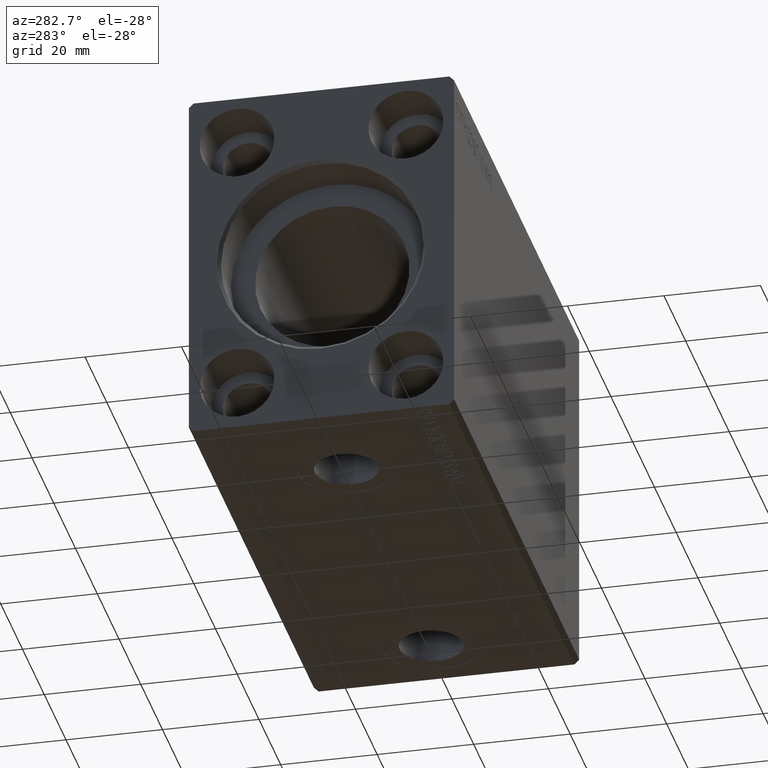
[diagram: clean part render]
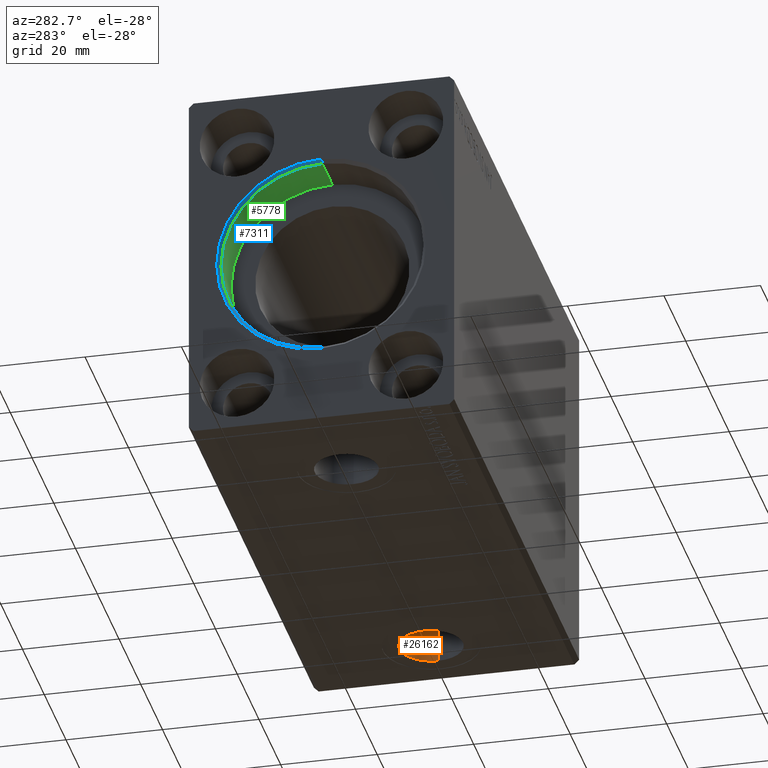
[diagram: same view with three faces highlighted in distinct colors, each labeled with its STEP entity id]
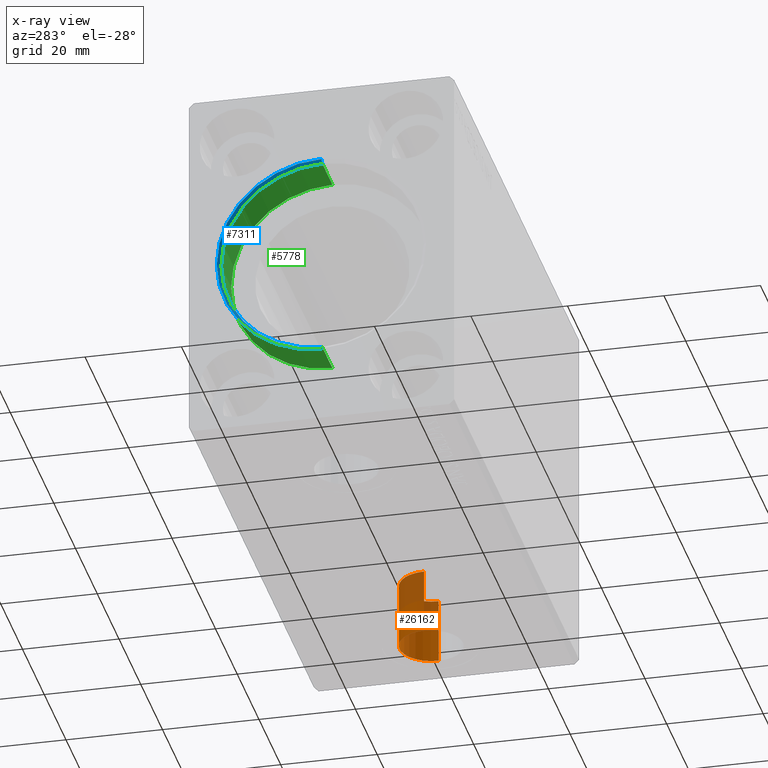
[diagram: x-ray of the same camera — body ghosted, the three highlighted faces saturated]
A machine part, auxiliary view with three faces highlighted in distinct colors.
The next image is the same camera in x-ray (body ghosted, the three faces saturated) — at least one of them is partly hidden behind the body in this view.
Their STEP definitions:

[orange] entity #26162 — the highlighted cylindrical surface (edge-blend (fillet) strip) has radius 6.58 mm, axis along (-0, -0, -1).
#1473 = AXIS2_PLACEMENT_3D ( 'NONE', #39328, #26182, #3771 ) ;
#1610 = CARTESIAN_POINT ( 'NONE',  ( 94.42000000000000171, -1.424819663353346309E-14, -23.79999999999998650 ) ) ;
#2029 = DIRECTION ( 'NONE',  ( -1.000000000000000000, 0.000000000000000000, 0.000000000000000000 ) ) ;
#2597 = CARTESIAN_POINT ( 'NONE',  ( 107.5800000000000125, -1.344237903969450405E-14, -23.79999999999998650 ) ) ;
#3771 = DIRECTION ( 'NONE',  ( -1.000000000000000000, 0.000000000000000000, 0.000000000000000000 ) ) ;
#5127 = DIRECTION ( 'NONE',  ( 0.000000000000000000, 0.000000000000000000, -1.000000000000000000 ) ) ;
#5264 = CYLINDRICAL_SURFACE ( 'NONE', #19897, 6.580000000000002736 ) ;
#5452 = CIRCLE ( 'NONE', #16461, 6.580000000000002736 ) ;
#8056 = ORIENTED_EDGE ( 'NONE', *, *, #38786, .T. ) ;
#8504 = FACE_OUTER_BOUND ( 'NONE', #40444, .T. ) ;
#8712 = DIRECTION ( 'NONE',  ( -0.000000000000000000, -0.000000000000000000, -1.000000000000000000 ) ) ;
#8765 = LINE ( 'NONE', #29006, #27138 ) ;
#9767 = VERTEX_POINT ( 'NONE', #40233 ) ;
#9862 = CARTESIAN_POINT ( 'NONE',  ( 94.42000000000000171, -1.424819663353346309E-14, -37.39999999999999147 ) ) ;
#12186 = EDGE_CURVE ( 'NONE', #39891, #9767, #8765, .T. ) ;
#12423 = DIRECTION ( 'NONE',  ( -0.000000000000000000, -0.000000000000000000, -1.000000000000000000 ) ) ;
#13267 = ORIENTED_EDGE ( 'NONE', *, *, #26138, .T. ) ;
#16461 = AXIS2_PLACEMENT_3D ( 'NONE', #37673, #5127, #21942 ) ;
#17989 = LINE ( 'NONE', #1610, #21951 ) ;
#19231 = CARTESIAN_POINT ( 'NONE',  ( 94.42000000000000171, -1.424819663353346309E-14, -23.79999999999998650 ) ) ;
#19897 = AXIS2_PLACEMENT_3D ( 'NONE', #31754, #8712, #2029 ) ;
#21942 = DIRECTION ( 'NONE',  ( -1.000000000000000000, 0.000000000000000000, 0.000000000000000000 ) ) ;
#21951 = VECTOR ( 'NONE', #31967, 1000.000000000000000 ) ;
#26138 = EDGE_CURVE ( 'NONE', #36027, #30730, #17989, .T. ) ;
#26162 = ADVANCED_FACE ( 'NONE', ( #8504 ), #5264, .F. ) ;
#26182 = DIRECTION ( 'NONE',  ( 0.000000000000000000, 0.000000000000000000, -1.000000000000000000 ) ) ;
#27138 = VECTOR ( 'NONE', #12423, 1000.000000000000000 ) ;
#27990 = EDGE_CURVE ( 'NONE', #36027, #39891, #5452, .T. ) ;
#29006 = CARTESIAN_POINT ( 'NONE',  ( 107.5800000000000125, -1.344237903969450405E-14, -23.79999999999998650 ) ) ;
#29990 = ORIENTED_EDGE ( 'NONE', *, *, #27990, .F. ) ;
#30390 = CIRCLE ( 'NONE', #1473, 6.580000000000002736 ) ;
#30730 = VERTEX_POINT ( 'NONE', #9862 ) ;
#31754 = CARTESIAN_POINT ( 'NONE',  ( 101.0000000000000000, -1.424819663353346309E-14, -23.79999999999998650 ) ) ;
#31967 = DIRECTION ( 'NONE',  ( -0.000000000000000000, -0.000000000000000000, -1.000000000000000000 ) ) ;
#36027 = VERTEX_POINT ( 'NONE', #19231 ) ;
#37673 = CARTESIAN_POINT ( 'NONE',  ( 101.0000000000000000, -1.424819663353346309E-14, -23.79999999999998650 ) ) ;
#38786 = EDGE_CURVE ( 'NONE', #30730, #9767, #30390, .T. ) ;
#39328 = CARTESIAN_POINT ( 'NONE',  ( 101.0000000000000000, -1.424819663353346309E-14, -37.39999999999999147 ) ) ;
#39891 = VERTEX_POINT ( 'NONE', #2597 ) ;
#40233 = CARTESIAN_POINT ( 'NONE',  ( 107.5800000000000125, -1.344237903969450405E-14, -37.39999999999999147 ) ) ;
#40444 = EDGE_LOOP ( 'NONE', ( #42627, #29990, #13267, #8056 ) ) ;
#42627 = ORIENTED_EDGE ( 'NONE', *, *, #12186, .F. ) ;

[blue] entity #7311 — the highlighted conical surface has half-angle 45 deg.
#2004 = VECTOR ( 'NONE', #33314, 1000.000000000000000 ) ;
#3368 = CARTESIAN_POINT ( 'NONE',  ( 0.7000000000000443645, 0.000000000000000000, 21.00000000000000000 ) ) ;
#4170 = VERTEX_POINT ( 'NONE', #5033 ) ;
#4303 = CARTESIAN_POINT ( 'NONE',  ( 0.7000000000000443645, 2.571758278209441661E-15, -21.00000000000000000 ) ) ;
#5033 = CARTESIAN_POINT ( 'NONE',  ( 0.000000000000000000, 2.657483554149761471E-15, -21.70000000000003837 ) ) ;
#5555 = DIRECTION ( 'NONE',  ( -0.7071067811865511255, 8.659560562354889717E-17, -0.7071067811865440200 ) ) ;
#5933 = DIRECTION ( 'NONE',  ( -1.000000000000000000, 0.000000000000000000, 0.000000000000000000 ) ) ;
#6122 = AXIS2_PLACEMENT_3D ( 'NONE', #32130, #42476, #12964 ) ;
#7311 = ADVANCED_FACE ( 'NONE', ( #32421 ), #20787, .F. ) ;
#9566 = EDGE_CURVE ( 'NONE', #14630, #4170, #33810, .T. ) ;
#10019 = CIRCLE ( 'NONE', #14793, 21.00000000000000000 ) ;
#10608 = CARTESIAN_POINT ( 'NONE',  ( 0.000000000000000000, 0.000000000000000000, 21.70000000000003837 ) ) ;
#12119 = CARTESIAN_POINT ( 'NONE',  ( 0.7000000000000443645, 0.000000000000000000, 21.00000000000000000 ) ) ;
#12964 = DIRECTION ( 'NONE',  ( 0.000000000000000000, 0.000000000000000000, -1.000000000000000000 ) ) ;
#14099 = ORIENTED_EDGE ( 'NONE', *, *, #15215, .F. ) ;
#14630 = VERTEX_POINT ( 'NONE', #16641 ) ;
#14793 = AXIS2_PLACEMENT_3D ( 'NONE', #15455, #38315, #15029 ) ;
#15029 = DIRECTION ( 'NONE',  ( 0.000000000000000000, 0.000000000000000000, -1.000000000000000000 ) ) ;
#15199 = DIRECTION ( 'NONE',  ( 0.000000000000000000, 0.000000000000000000, 1.000000000000000000 ) ) ;
#15215 = EDGE_CURVE ( 'NONE', #29198, #14630, #10019, .T. ) ;
#15455 = CARTESIAN_POINT ( 'NONE',  ( 0.7000000000000443645, 0.000000000000000000, 0.000000000000000000 ) ) ;
#16641 = CARTESIAN_POINT ( 'NONE',  ( 0.7000000000000443645, 2.571758278209441661E-15, -21.00000000000000000 ) ) ;
#19136 = ORIENTED_EDGE ( 'NONE', *, *, #26865, .T. ) ;
#20787 = CONICAL_SURFACE ( 'NONE', #24226, 21.00000000000000000, 0.7853981633974432830 ) ;
#24226 = AXIS2_PLACEMENT_3D ( 'NONE', #35453, #5933, #15199 ) ;
#24712 = CIRCLE ( 'NONE', #6122, 21.70000000000003837 ) ;
#26649 = EDGE_CURVE ( 'NONE', #4170, #36201, #24712, .T. ) ;
#26865 = EDGE_CURVE ( 'NONE', #29198, #36201, #33097, .T. ) ;
#29198 = VERTEX_POINT ( 'NONE', #12119 ) ;
#31459 = EDGE_LOOP ( 'NONE', ( #42566, #14099, #19136, #40490 ) ) ;
#32130 = CARTESIAN_POINT ( 'NONE',  ( 0.000000000000000000, 0.000000000000000000, 0.000000000000000000 ) ) ;
#32421 = FACE_OUTER_BOUND ( 'NONE', #31459, .T. ) ;
#33097 = LINE ( 'NONE', #3368, #2004 ) ;
#33314 = DIRECTION ( 'NONE',  ( -0.7071067811865511255, 0.000000000000000000, 0.7071067811865440200 ) ) ;
#33810 = LINE ( 'NONE', #4303, #38700 ) ;
#35453 = CARTESIAN_POINT ( 'NONE',  ( 0.7000000000000443645, 0.000000000000000000, 0.000000000000000000 ) ) ;
#36201 = VERTEX_POINT ( 'NONE', #10608 ) ;
#38315 = DIRECTION ( 'NONE',  ( -1.000000000000000000, 0.000000000000000000, 0.000000000000000000 ) ) ;
#38700 = VECTOR ( 'NONE', #5555, 1000.000000000000000 ) ;
#40490 = ORIENTED_EDGE ( 'NONE', *, *, #26649, .F. ) ;
#42476 = DIRECTION ( 'NONE',  ( 1.000000000000000000, 0.000000000000000000, 0.000000000000000000 ) ) ;
#42566 = ORIENTED_EDGE ( 'NONE', *, *, #9566, .F. ) ;

[green] entity #5778 — the highlighted cylindrical surface (partial cylindrical patch) has radius 21 mm, axis along (-1, -0, -0).
#1837 = VERTEX_POINT ( 'NONE', #13066 ) ;
#3062 = CIRCLE ( 'NONE', #39544, 21.00000000000000000 ) ;
#4560 = FACE_OUTER_BOUND ( 'NONE', #9510, .T. ) ;
#5550 = EDGE_CURVE ( 'NONE', #21957, #14630, #23121, .T. ) ;
#5778 = ADVANCED_FACE ( 'NONE', ( #4560 ), #14673, .F. ) ;
#6334 = DIRECTION ( 'NONE',  ( -1.000000000000000000, 0.000000000000000000, 0.000000000000000000 ) ) ;
#6546 = DIRECTION ( 'NONE',  ( 0.000000000000000000, 0.000000000000000000, 1.000000000000000000 ) ) ;
#8281 = ORIENTED_EDGE ( 'NONE', *, *, #12497, .F. ) ;
#9510 = EDGE_LOOP ( 'NONE', ( #19098, #8281, #20056, #24338 ) ) ;
#10019 = CIRCLE ( 'NONE', #14793, 21.00000000000000000 ) ;
#10219 = CARTESIAN_POINT ( 'NONE',  ( 10.00000000000000000, 0.000000000000000000, 0.000000000000000000 ) ) ;
#11444 = CARTESIAN_POINT ( 'NONE',  ( 10.00000000000000000, 0.000000000000000000, 0.000000000000000000 ) ) ;
#12119 = CARTESIAN_POINT ( 'NONE',  ( 0.7000000000000443645, 0.000000000000000000, 21.00000000000000000 ) ) ;
#12497 = EDGE_CURVE ( 'NONE', #1837, #21957, #3062, .T. ) ;
#13066 = CARTESIAN_POINT ( 'NONE',  ( 10.00000000000000000, 0.000000000000000000, 21.00000000000000000 ) ) ;
#14630 = VERTEX_POINT ( 'NONE', #16641 ) ;
#14673 = CYLINDRICAL_SURFACE ( 'NONE', #29741, 21.00000000000000000 ) ;
#14793 = AXIS2_PLACEMENT_3D ( 'NONE', #15455, #38315, #15029 ) ;
#15029 = DIRECTION ( 'NONE',  ( 0.000000000000000000, 0.000000000000000000, -1.000000000000000000 ) ) ;
#15215 = EDGE_CURVE ( 'NONE', #29198, #14630, #10019, .T. ) ;
#15455 = CARTESIAN_POINT ( 'NONE',  ( 0.7000000000000443645, 0.000000000000000000, 0.000000000000000000 ) ) ;
#16641 = CARTESIAN_POINT ( 'NONE',  ( 0.7000000000000443645, 2.571758278209441661E-15, -21.00000000000000000 ) ) ;
#16642 = CARTESIAN_POINT ( 'NONE',  ( 10.00000000000000000, 2.571758278209441661E-15, -21.00000000000000000 ) ) ;
#18060 = VECTOR ( 'NONE', #26980, 1000.000000000000000 ) ;
#19001 = CARTESIAN_POINT ( 'NONE',  ( 10.00000000000000000, 0.000000000000000000, 21.00000000000000000 ) ) ;
#19098 = ORIENTED_EDGE ( 'NONE', *, *, #5550, .F. ) ;
#20056 = ORIENTED_EDGE ( 'NONE', *, *, #22281, .T. ) ;
#21957 = VERTEX_POINT ( 'NONE', #24938 ) ;
#22281 = EDGE_CURVE ( 'NONE', #1837, #29198, #42266, .T. ) ;
#23121 = LINE ( 'NONE', #16642, #18060 ) ;
#24338 = ORIENTED_EDGE ( 'NONE', *, *, #15215, .T. ) ;
#24938 = CARTESIAN_POINT ( 'NONE',  ( 10.00000000000000000, 2.571758278209441661E-15, -21.00000000000000000 ) ) ;
#25689 = DIRECTION ( 'NONE',  ( -1.000000000000000000, -0.000000000000000000, -0.000000000000000000 ) ) ;
#26980 = DIRECTION ( 'NONE',  ( -1.000000000000000000, -0.000000000000000000, -0.000000000000000000 ) ) ;
#29198 = VERTEX_POINT ( 'NONE', #12119 ) ;
#29741 = AXIS2_PLACEMENT_3D ( 'NONE', #11444, #34071, #41169 ) ;
#34071 = DIRECTION ( 'NONE',  ( -1.000000000000000000, -0.000000000000000000, -0.000000000000000000 ) ) ;
#36994 = VECTOR ( 'NONE', #25689, 1000.000000000000000 ) ;
#38315 = DIRECTION ( 'NONE',  ( -1.000000000000000000, 0.000000000000000000, 0.000000000000000000 ) ) ;
#39544 = AXIS2_PLACEMENT_3D ( 'NONE', #10219, #6334, #6546 ) ;
#41169 = DIRECTION ( 'NONE',  ( 0.000000000000000000, 0.000000000000000000, 1.000000000000000000 ) ) ;
#42266 = LINE ( 'NONE', #19001, #36994 ) ;